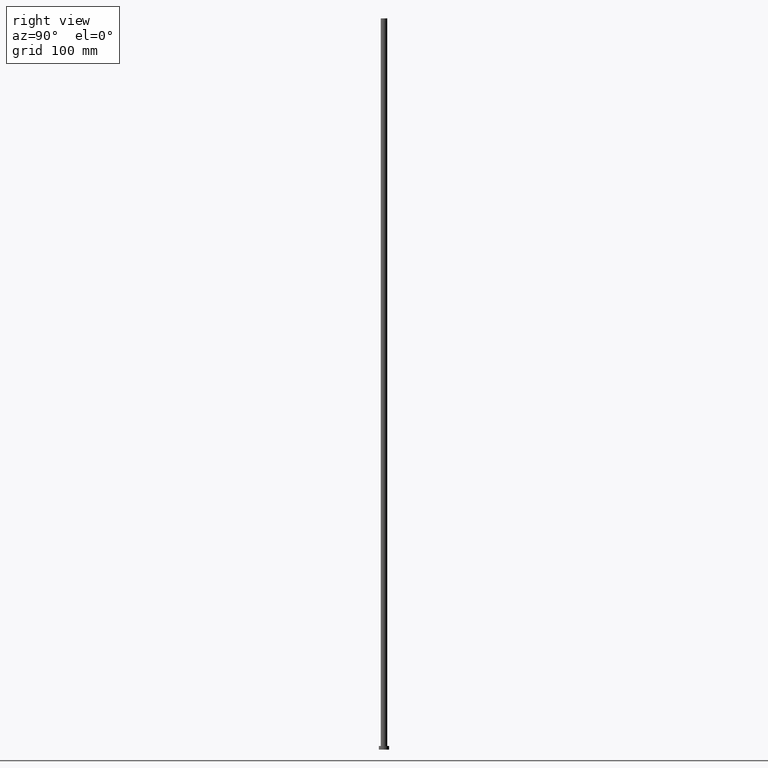
[diagram: clean part render]
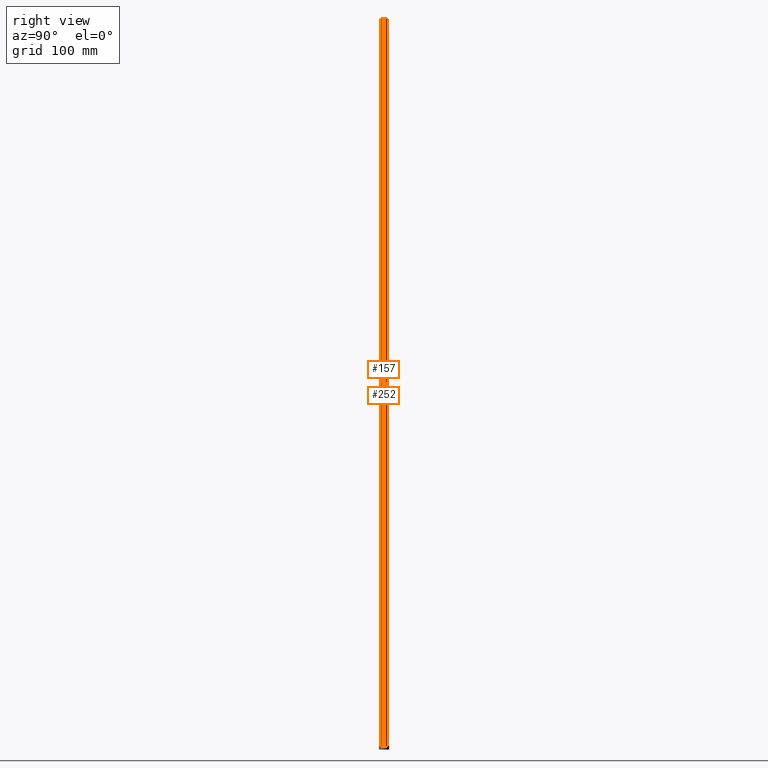
[diagram: same view with one multi-face feature highlighted, each face labeled with its STEP entity id]
A machine part, right view. The highlighted faces form ONE feature: a constant-radius fillet chain: 2 tangent blend faces with common blend radius 4.5 mm. The faces share edges in the B-rep.
Their STEP definitions:
[1] entity #157 (Cylinder):
#1 = CARTESIAN_POINT ( 'NONE',  ( 4.500000000000000888, 5.510910596163088569E-16, 5.000000000000000000 ) ) ;
#12 = EDGE_LOOP ( 'NONE', ( #43, #82, #164, #183 ) ) ;
#19 = DIRECTION ( 'NONE',  ( -0.000000000000000000, -0.000000000000000000, -1.000000000000000000 ) ) ;
#20 = CARTESIAN_POINT ( 'NONE',  ( 4.500000000000000888, 5.510910596163088569E-16, 1000.000000000000000 ) ) ;
#25 = EDGE_CURVE ( 'NONE', #67, #156, #137, .T. ) ;
#31 = DIRECTION ( 'NONE',  ( 1.000000000000000000, 0.000000000000000000, 0.000000000000000000 ) ) ;
#34 = CYLINDRICAL_SURFACE ( 'NONE', #79, 4.500000000000000888 ) ;
#35 = CARTESIAN_POINT ( 'NONE',  ( 0.000000000000000000, 0.000000000000000000, 1000.000000000000000 ) ) ;
#43 = ORIENTED_EDGE ( 'NONE', *, *, #219, .F. ) ;
#46 = DIRECTION ( 'NONE',  ( -1.000000000000000000, 0.000000000000000000, 0.000000000000000000 ) ) ;
#61 = VERTEX_POINT ( 'NONE', #247 ) ;
#62 = CARTESIAN_POINT ( 'NONE',  ( 0.000000000000000000, 0.000000000000000000, 5.000000000000000000 ) ) ;
#67 = VERTEX_POINT ( 'NONE', #205 ) ;
#73 = VECTOR ( 'NONE', #19, 1000.000000000000000 ) ;
#75 = DIRECTION ( 'NONE',  ( -0.000000000000000000, -0.000000000000000000, -1.000000000000000000 ) ) ;
#79 = AXIS2_PLACEMENT_3D ( 'NONE', #35, #95, #46 ) ;
#82 = ORIENTED_EDGE ( 'NONE', *, *, #113, .F. ) ;
#89 = CARTESIAN_POINT ( 'NONE',  ( 4.500000000000000888, 5.510910596163088569E-16, 1000.000000000000000 ) ) ;
#95 = DIRECTION ( 'NONE',  ( -0.000000000000000000, -0.000000000000000000, -1.000000000000000000 ) ) ;
#111 = AXIS2_PLACEMENT_3D ( 'NONE', #62, #141, #207 ) ;
#113 = EDGE_CURVE ( 'NONE', #61, #120, #168, .T. ) ;
#120 = VERTEX_POINT ( 'NONE', #89 ) ;
#137 = CIRCLE ( 'NONE', #111, 4.500000000000000888 ) ;
#141 = DIRECTION ( 'NONE',  ( 0.000000000000000000, 0.000000000000000000, 1.000000000000000000 ) ) ;
#151 = CARTESIAN_POINT ( 'NONE',  ( -4.500000000000000888, 0.000000000000000000, 1000.000000000000000 ) ) ;
#156 = VERTEX_POINT ( 'NONE', #1 ) ;
#157 = ADVANCED_FACE ( 'NONE', ( #216 ), #34, .T. ) ;
#164 = ORIENTED_EDGE ( 'NONE', *, *, #170, .T. ) ;
#168 = CIRCLE ( 'NONE', #238, 4.500000000000000888 ) ;
#169 = CARTESIAN_POINT ( 'NONE',  ( 0.000000000000000000, 0.000000000000000000, 1000.000000000000000 ) ) ;
#170 = EDGE_CURVE ( 'NONE', #61, #67, #214, .T. ) ;
#183 = ORIENTED_EDGE ( 'NONE', *, *, #25, .T. ) ;
#198 = LINE ( 'NONE', #20, #73 ) ;
#205 = CARTESIAN_POINT ( 'NONE',  ( -4.500000000000000888, 0.000000000000000000, 5.000000000000000000 ) ) ;
#207 = DIRECTION ( 'NONE',  ( 1.000000000000000000, 0.000000000000000000, 0.000000000000000000 ) ) ;
#214 = LINE ( 'NONE', #151, #229 ) ;
#216 = FACE_OUTER_BOUND ( 'NONE', #12, .T. ) ;
#217 = DIRECTION ( 'NONE',  ( 0.000000000000000000, 0.000000000000000000, 1.000000000000000000 ) ) ;
#219 = EDGE_CURVE ( 'NONE', #120, #156, #198, .T. ) ;
#229 = VECTOR ( 'NONE', #75, 1000.000000000000000 ) ;
#238 = AXIS2_PLACEMENT_3D ( 'NONE', #169, #217, #31 ) ;
#247 = CARTESIAN_POINT ( 'NONE',  ( -4.500000000000000888, 0.000000000000000000, 1000.000000000000000 ) ) ;
[2] entity #252 (Cylinder):
#1 = CARTESIAN_POINT ( 'NONE',  ( 4.500000000000000888, 5.510910596163088569E-16, 5.000000000000000000 ) ) ;
#19 = DIRECTION ( 'NONE',  ( -0.000000000000000000, -0.000000000000000000, -1.000000000000000000 ) ) ;
#20 = CARTESIAN_POINT ( 'NONE',  ( 4.500000000000000888, 5.510910596163088569E-16, 1000.000000000000000 ) ) ;
#39 = FACE_OUTER_BOUND ( 'NONE', #108, .T. ) ;
#55 = AXIS2_PLACEMENT_3D ( 'NONE', #72, #255, #94 ) ;
#60 = ORIENTED_EDGE ( 'NONE', *, *, #115, .F. ) ;
#61 = VERTEX_POINT ( 'NONE', #247 ) ;
#67 = VERTEX_POINT ( 'NONE', #205 ) ;
#72 = CARTESIAN_POINT ( 'NONE',  ( 0.000000000000000000, 0.000000000000000000, 1000.000000000000000 ) ) ;
#73 = VECTOR ( 'NONE', #19, 1000.000000000000000 ) ;
#75 = DIRECTION ( 'NONE',  ( -0.000000000000000000, -0.000000000000000000, -1.000000000000000000 ) ) ;
#89 = CARTESIAN_POINT ( 'NONE',  ( 4.500000000000000888, 5.510910596163088569E-16, 1000.000000000000000 ) ) ;
#94 = DIRECTION ( 'NONE',  ( 1.000000000000000000, 0.000000000000000000, 0.000000000000000000 ) ) ;
#97 = DIRECTION ( 'NONE',  ( -0.000000000000000000, -0.000000000000000000, -1.000000000000000000 ) ) ;
#108 = EDGE_LOOP ( 'NONE', ( #60, #124, #161, #184 ) ) ;
#115 = EDGE_CURVE ( 'NONE', #120, #61, #150, .T. ) ;
#119 = CYLINDRICAL_SURFACE ( 'NONE', #175, 4.500000000000000888 ) ;
#120 = VERTEX_POINT ( 'NONE', #89 ) ;
#124 = ORIENTED_EDGE ( 'NONE', *, *, #219, .T. ) ;
#135 = DIRECTION ( 'NONE',  ( 0.000000000000000000, 0.000000000000000000, 1.000000000000000000 ) ) ;
#136 = DIRECTION ( 'NONE',  ( 1.000000000000000000, 0.000000000000000000, 0.000000000000000000 ) ) ;
#150 = CIRCLE ( 'NONE', #55, 4.500000000000000888 ) ;
#151 = CARTESIAN_POINT ( 'NONE',  ( -4.500000000000000888, 0.000000000000000000, 1000.000000000000000 ) ) ;
#152 = CARTESIAN_POINT ( 'NONE',  ( 0.000000000000000000, 0.000000000000000000, 5.000000000000000000 ) ) ;
#156 = VERTEX_POINT ( 'NONE', #1 ) ;
#161 = ORIENTED_EDGE ( 'NONE', *, *, #202, .T. ) ;
#170 = EDGE_CURVE ( 'NONE', #61, #67, #214, .T. ) ;
#175 = AXIS2_PLACEMENT_3D ( 'NONE', #176, #97, #245 ) ;
#176 = CARTESIAN_POINT ( 'NONE',  ( 0.000000000000000000, 0.000000000000000000, 1000.000000000000000 ) ) ;
#177 = CIRCLE ( 'NONE', #213, 4.500000000000000888 ) ;
#184 = ORIENTED_EDGE ( 'NONE', *, *, #170, .F. ) ;
#198 = LINE ( 'NONE', #20, #73 ) ;
#202 = EDGE_CURVE ( 'NONE', #156, #67, #177, .T. ) ;
#205 = CARTESIAN_POINT ( 'NONE',  ( -4.500000000000000888, 0.000000000000000000, 5.000000000000000000 ) ) ;
#213 = AXIS2_PLACEMENT_3D ( 'NONE', #152, #135, #136 ) ;
#214 = LINE ( 'NONE', #151, #229 ) ;
#219 = EDGE_CURVE ( 'NONE', #120, #156, #198, .T. ) ;
#229 = VECTOR ( 'NONE', #75, 1000.000000000000000 ) ;
#245 = DIRECTION ( 'NONE',  ( -1.000000000000000000, 0.000000000000000000, 0.000000000000000000 ) ) ;
#247 = CARTESIAN_POINT ( 'NONE',  ( -4.500000000000000888, 0.000000000000000000, 1000.000000000000000 ) ) ;
#252 = ADVANCED_FACE ( 'NONE', ( #39 ), #119, .T. ) ;
#255 = DIRECTION ( 'NONE',  ( 0.000000000000000000, 0.000000000000000000, 1.000000000000000000 ) ) ;